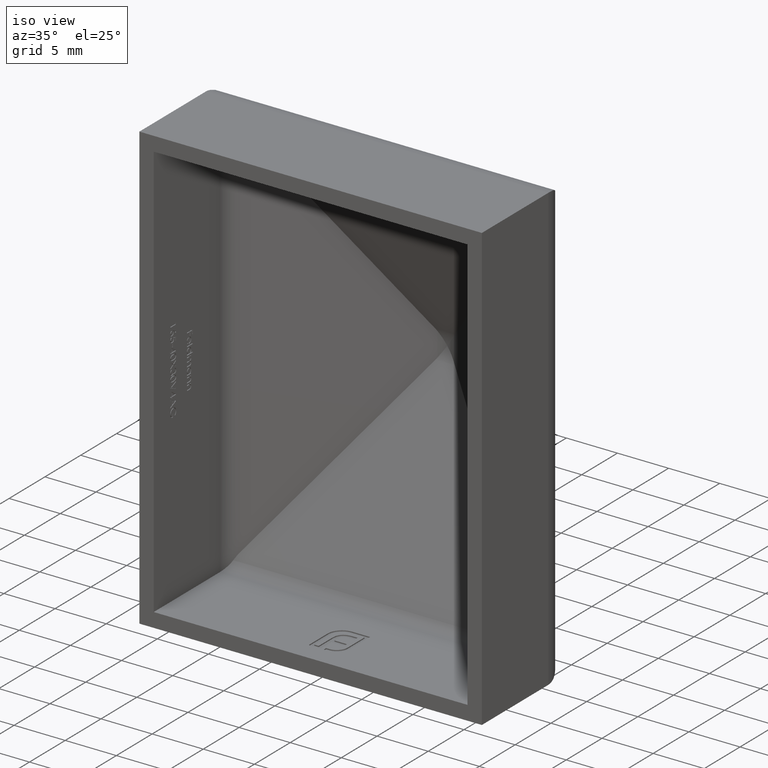
[diagram: clean part render]
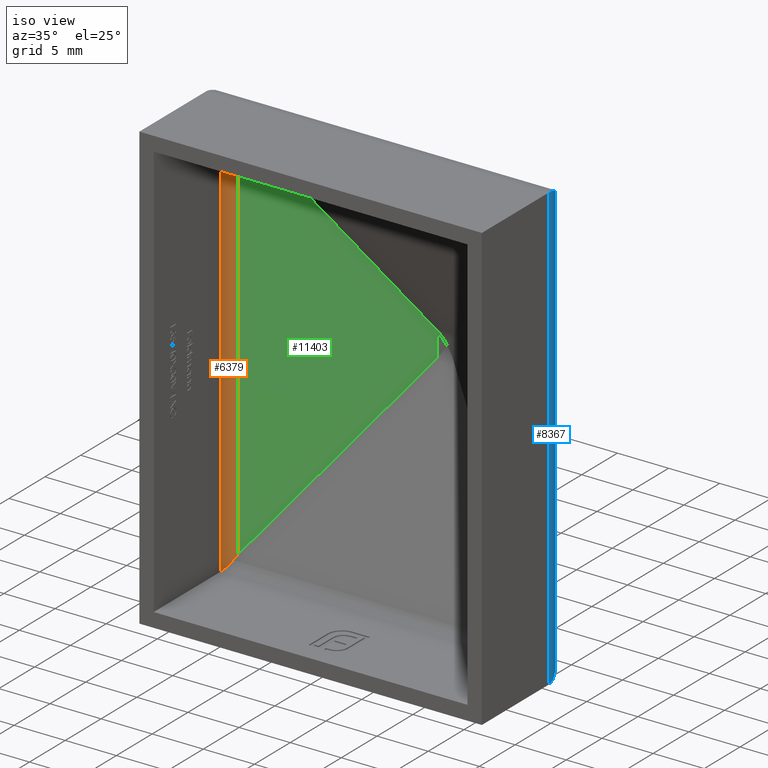
[diagram: same view with three faces highlighted in distinct colors, each labeled with its STEP entity id]
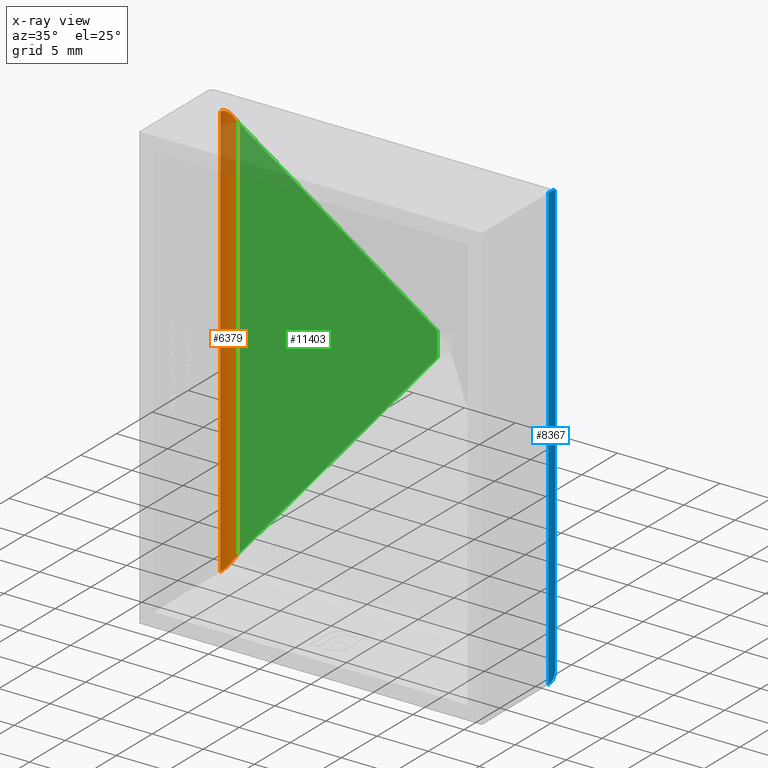
[diagram: x-ray of the same camera — body ghosted, the three highlighted faces saturated]
A machine part, iso view with three faces highlighted in distinct colors.
The next image is the same camera in x-ray (body ghosted, the three faces saturated) — at least one of them is partly hidden behind the body in this view.
Their STEP definitions:

[orange] entity #6379 — the highlighted cylindrical surface (edge-blend (fillet) strip) has radius 1.6 mm, axis along (-0, -0, -1).
#205 = CARTESIAN_POINT ( 'NONE',  ( -14.67972254407803234, 10.60493016804379529, -19.25135457659041549 ) ) ;
#274 = ORIENTED_EDGE ( 'NONE', *, *, #15290, .F. ) ;
#750 = DIRECTION ( 'NONE',  ( -0.000000000000000000, -0.000000000000000000, -1.000000000000000000 ) ) ;
#812 = CARTESIAN_POINT ( 'NONE',  ( -15.23804731063724027, 9.894635276344930119, -20.20459745980271649 ) ) ;
#916 = CARTESIAN_POINT ( 'NONE',  ( -14.56977444763071006, 10.67052725658989409, -19.10819482420551196 ) ) ;
#919 = EDGE_CURVE ( 'NONE', #10135, #2131, #4051, .T. ) ;
#1184 = B_SPLINE_CURVE_WITH_KNOTS ( 'NONE', 3,
 ( #11404, #7366, #7480, #11190, #8703, #812, #13896, #16766, #8585, #3392 ),
 .UNSPECIFIED., .F., .F.,
 ( 4, 2, 2, 2, 4 ),
 ( 0.007473035587638266440, 0.007852077891656525366, 0.008231120195674785159, 0.008610162499693043217, 0.008989204803711303010 ),
 .UNSPECIFIED. ) ;
#1861 = EDGE_CURVE ( 'NONE', #2131, #14797, #10075, .T. ) ;
#1955 =( BOUNDED_CURVE ( )  B_SPLINE_CURVE ( 3, ( #3559, #7749, #16983, #2314 ),
 .UNSPECIFIED., .F., .F. ) 
 B_SPLINE_CURVE_WITH_KNOTS ( ( 4, 4 ),
 ( 5.505774456628172331, 5.745255778400744084 ),
 .UNSPECIFIED. ) 
 CURVE ( )  GEOMETRIC_REPRESENTATION_ITEM ( )  RATIONAL_B_SPLINE_CURVE ( ( 1.000000000000000000, 0.9952264323498023479, 0.9952264323498023479, 1.000000000000000000 ) ) 
 REPRESENTATION_ITEM ( '' )  );
#2032 = CARTESIAN_POINT ( 'NONE',  ( -15.14237450061064649, 10.09232732462494653, 20.07247944126415362 ) ) ;
#2131 = VERTEX_POINT ( 'NONE', #11335 ) ;
#2314 = CARTESIAN_POINT ( 'NONE',  ( -14.56977444763071006, 10.67052725658989409, 19.10819482420551196 ) ) ;
#2986 = ORIENTED_EDGE ( 'NONE', *, *, #1861, .T. ) ;
#3384 = CARTESIAN_POINT ( 'NONE',  ( -15.23804731063724205, 9.894635276344919461, 20.20459745980272004 ) ) ;
#3392 = CARTESIAN_POINT ( 'NONE',  ( -15.34999999999998899, 9.296493103079932041, -20.35000000000000142 ) ) ;
#3559 = CARTESIAN_POINT ( 'NONE',  ( -14.87229824412480994, 10.43686438088134238, 19.61814305772313105 ) ) ;
#4051 = B_SPLINE_CURVE_WITH_KNOTS ( 'NONE', 3,
 ( #15825, #14776, #5678, #7016, #2032, #3384, #14176, #6259, #9177, #17199 ),
 .UNSPECIFIED., .F., .F.,
 ( 4, 2, 2, 2, 4 ),
 ( 0.007473035587638262103, 0.007852077891656525366, 0.008231120195674788628, 0.008610162499693051891, 0.008989204803711315153 ),
 .UNSPECIFIED. ) ;
#4082 = VECTOR ( 'NONE', #750, 1000.000000000000000 ) ;
#4463 = CARTESIAN_POINT ( 'NONE',  ( -14.87229824412481172, 10.43686438088134061, -19.61814305772313105 ) ) ;
#5370 = AXIS2_PLACEMENT_3D ( 'NONE', #5393, #10903, #13360 ) ;
#5393 = CARTESIAN_POINT ( 'NONE',  ( -13.74999999999998934, 9.296493103079965792, 21.75000000000000000 ) ) ;
#5678 = CARTESIAN_POINT ( 'NONE',  ( -14.97827143062366595, 10.32600729095936920, 19.82134462968860333 ) ) ;
#5964 = ORIENTED_EDGE ( 'NONE', *, *, #919, .T. ) ;
#6259 = CARTESIAN_POINT ( 'NONE',  ( -15.33466010626163900, 9.548929487481535361, 20.33059636364347966 ) ) ;
#6379 = ADVANCED_FACE ( 'NONE', ( #11582 ), #10762, .F. ) ;
#6757 = EDGE_LOOP ( 'NONE', ( #7537, #13170, #274, #5964, #2986, #14700 ) ) ;
#6880 =( BOUNDED_CURVE ( )  B_SPLINE_CURVE ( 3, ( #12024, #12203, #205, #9361 ),
 .UNSPECIFIED., .F., .F. ) 
 B_SPLINE_CURVE_WITH_KNOTS ( ( 4, 4 ),
 ( 2.364181803038378771, 2.603663124810950968 ),
 .UNSPECIFIED. ) 
 CURVE ( )  GEOMETRIC_REPRESENTATION_ITEM ( )  RATIONAL_B_SPLINE_CURVE ( ( 1.000000000000000000, 0.9952264323498023479, 0.9952264323498023479, 1.000000000000000000 ) ) 
 REPRESENTATION_ITEM ( '' )  );
#7016 = CARTESIAN_POINT ( 'NONE',  ( -15.08869327799758153, 10.17765737708077012, 19.99568853197853002 ) ) ;
#7366 = CARTESIAN_POINT ( 'NONE',  ( -14.92166758219849498, 10.38827746667869079, -19.72417963282981290 ) ) ;
#7480 = CARTESIAN_POINT ( 'NONE',  ( -14.97827143062366240, 10.32600729095936920, -19.82134462968859623 ) ) ;
#7537 = ORIENTED_EDGE ( 'NONE', *, *, #13147, .T. ) ;
#7623 = CARTESIAN_POINT ( 'NONE',  ( -14.56977444763071006, 10.67052725658989409, 21.75000000000000000 ) ) ;
#7706 = EDGE_CURVE ( 'NONE', #14097, #11564, #16370, .T. ) ;
#7749 = CARTESIAN_POINT ( 'NONE',  ( -14.78104749106515925, 10.52666895762529364, 19.42215263719309704 ) ) ;
#7793 = VECTOR ( 'NONE', #10311, 1000.000000000000000 ) ;
#8585 = CARTESIAN_POINT ( 'NONE',  ( -15.34999999999999432, 9.423924627749887151, -20.35000000000000497 ) ) ;
#8703 = CARTESIAN_POINT ( 'NONE',  ( -15.14237450061064649, 10.09232732462495186, -20.07247944126414652 ) ) ;
#9177 = CARTESIAN_POINT ( 'NONE',  ( -15.34999999999999964, 9.423924627749871163, 20.35000000000000497 ) ) ;
#9361 = CARTESIAN_POINT ( 'NONE',  ( -14.56977444763071006, 10.67052725658989409, -19.10819482420551196 ) ) ;
#10075 = LINE ( 'NONE', #15647, #7793 ) ;
#10135 = VERTEX_POINT ( 'NONE', #10431 ) ;
#10311 = DIRECTION ( 'NONE',  ( 0.000000000000000000, 0.000000000000000000, -1.000000000000000000 ) ) ;
#10367 = VERTEX_POINT ( 'NONE', #4463 ) ;
#10431 = CARTESIAN_POINT ( 'NONE',  ( -14.87229824412480994, 10.43686438088134238, 19.61814305772313105 ) ) ;
#10762 = CYLINDRICAL_SURFACE ( 'NONE', #5370, 1.599999999999998979 ) ;
#10903 = DIRECTION ( 'NONE',  ( -0.000000000000000000, -0.000000000000000000, -1.000000000000000000 ) ) ;
#11190 = CARTESIAN_POINT ( 'NONE',  ( -15.08869327799757620, 10.17765737708077722, -19.99568853197853002 ) ) ;
#11335 = CARTESIAN_POINT ( 'NONE',  ( -15.34999999999999076, 9.296493103079916054, 20.35000000000000142 ) ) ;
#11404 = CARTESIAN_POINT ( 'NONE',  ( -14.87229824412481172, 10.43686438088134061, -19.61814305772313105 ) ) ;
#11564 = VERTEX_POINT ( 'NONE', #916 ) ;
#11582 = FACE_OUTER_BOUND ( 'NONE', #6757, .T. ) ;
#12024 = CARTESIAN_POINT ( 'NONE',  ( -14.87229824412481172, 10.43686438088134061, -19.61814305772313105 ) ) ;
#12203 = CARTESIAN_POINT ( 'NONE',  ( -14.78104749106515925, 10.52666895762529542, -19.42215263719309704 ) ) ;
#13056 = CARTESIAN_POINT ( 'NONE',  ( -14.56977444763071006, 10.67052725658989409, 19.10819482420551196 ) ) ;
#13147 = EDGE_CURVE ( 'NONE', #10367, #11564, #6880, .T. ) ;
#13170 = ORIENTED_EDGE ( 'NONE', *, *, #7706, .F. ) ;
#13360 = DIRECTION ( 'NONE',  ( -1.000000000000000000, 0.000000000000000000, 0.000000000000000000 ) ) ;
#13896 = CARTESIAN_POINT ( 'NONE',  ( -15.27809645997709609, 9.786179726904181919, -20.25712701318252584 ) ) ;
#14097 = VERTEX_POINT ( 'NONE', #13056 ) ;
#14176 = CARTESIAN_POINT ( 'NONE',  ( -15.27809645997709609, 9.786179726904174814, 20.25712701318253295 ) ) ;
#14700 = ORIENTED_EDGE ( 'NONE', *, *, #15212, .F. ) ;
#14743 = CARTESIAN_POINT ( 'NONE',  ( -15.34999999999998899, 9.296493103079932041, -20.35000000000000142 ) ) ;
#14776 = CARTESIAN_POINT ( 'NONE',  ( -14.92166758219849498, 10.38827746667869434, 19.72417963282981290 ) ) ;
#14797 = VERTEX_POINT ( 'NONE', #14743 ) ;
#15212 = EDGE_CURVE ( 'NONE', #10367, #14797, #1184, .T. ) ;
#15290 = EDGE_CURVE ( 'NONE', #10135, #14097, #1955, .T. ) ;
#15647 = CARTESIAN_POINT ( 'NONE',  ( -15.34999999999999076, 9.296493103079967568, 21.75000000000000000 ) ) ;
#15825 = CARTESIAN_POINT ( 'NONE',  ( -14.87229824412480994, 10.43686438088134238, 19.61814305772313105 ) ) ;
#16370 = LINE ( 'NONE', #7623, #4082 ) ;
#16766 = CARTESIAN_POINT ( 'NONE',  ( -15.33466010626163367, 9.548929487481551348, -20.33059636364348322 ) ) ;
#16983 = CARTESIAN_POINT ( 'NONE',  ( -14.67972254407803234, 10.60493016804379529, 19.25135457659041549 ) ) ;
#17199 = CARTESIAN_POINT ( 'NONE',  ( -15.34999999999999076, 9.296493103079916054, 20.35000000000000142 ) ) ;

[blue] entity #8367 — the highlighted cylindrical surface (partial cylindrical patch) has radius 3 mm, axis along (-0, -0, -1).
#160 = B_SPLINE_CURVE_WITH_KNOTS ( 'NONE', 3,
 ( #5728, #8376, #8323, #10945, #8269, #15006, #4270, #401, #5555, #9742, #14949, #4341, #11052, #16182 ),
 .UNSPECIFIED., .F., .F.,
 ( 4, 2, 2, 2, 2, 2, 4 ),
 ( 0.000000000000000000, 0.0004112258583125507879, 0.0008224517166251015757, 0.001233677574937652472, 0.001644903433250203151, 0.002467355149875301908, 0.003289806866500400665 ),
 .UNSPECIFIED. ) ;
#401 = CARTESIAN_POINT ( 'NONE',  ( 16.46377361363001413, 10.58147893519188187, 21.42180310184390279 ) ) ;
#1064 = CARTESIAN_POINT ( 'NONE',  ( 15.53236989041276317, 11.70961505891849619, -20.20132888707435015 ) ) ;
#1176 = CARTESIAN_POINT ( 'NONE',  ( 16.60442991971268967, 10.22910847771391296, -21.58437289162511163 ) ) ;
#1555 = VERTEX_POINT ( 'NONE', #3936 ) ;
#1716 = CARTESIAN_POINT ( 'NONE',  ( 15.37148168312974050, 11.82244978327095808, -19.95507723846092318 ) ) ;
#2245 = EDGE_LOOP ( 'NONE', ( #11536, #14294, #3419, #3454, #10688, #6822 ) ) ;
#2293 = CARTESIAN_POINT ( 'NONE',  ( 16.09692896685115215, 11.17674144436293204, -20.98432485077248799 ) ) ;
#2487 = B_SPLINE_CURVE_WITH_KNOTS ( 'NONE', 3,
 ( #10453, #5225, #10287, #14282, #14391, #1176, #9120, #11829, #15741, #3764, #2293, #14334, #3708, #1064 ),
 .UNSPECIFIED., .F., .F.,
 ( 4, 2, 2, 2, 2, 2, 4 ),
 ( 0.000000000000000000, 0.0004112258583125507879, 0.0008224517166251015757, 0.001233677574937652472, 0.001644903433250203151, 0.002467355149875301908, 0.003289806866500400665 ),
 .UNSPECIFIED. ) ;
#2850 = DIRECTION ( 'NONE',  ( -0.000000000000000000, -0.000000000000000000, -1.000000000000000000 ) ) ;
#2997 = EDGE_CURVE ( 'NONE', #5568, #13969, #4563, .T. ) ;
#3419 = ORIENTED_EDGE ( 'NONE', *, *, #14323, .T. ) ;
#3454 = ORIENTED_EDGE ( 'NONE', *, *, #8360, .F. ) ;
#3467 =( BOUNDED_CURVE ( )  B_SPLINE_CURVE ( 3, ( #6031, #10007, #7347, #16638 ),
 .UNSPECIFIED., .F., .F. ) 
 B_SPLINE_CURVE_WITH_KNOTS ( ( 4, 4 ),
 ( 0.5379295287788433688, 0.6361752895425998311 ),
 .UNSPECIFIED. ) 
 CURVE ( )  GEOMETRIC_REPRESENTATION_ITEM ( )  RATIONAL_B_SPLINE_CURVE ( ( 1.000000000000000000, 0.9991958092737058816, 0.9991958092737058816, 1.000000000000000000 ) ) 
 REPRESENTATION_ITEM ( '' )  );
#3708 = CARTESIAN_POINT ( 'NONE',  ( 15.66867918130274084, 11.60893486939139763, -20.42105435541788339 ) ) ;
#3764 = CARTESIAN_POINT ( 'NONE',  ( 16.23055599966765072, 11.00033405241351403, -21.14613417132414952 ) ) ;
#3936 = CARTESIAN_POINT ( 'NONE',  ( 15.53236989041276317, 11.70961505891849619, 20.20132888707435015 ) ) ;
#4270 = CARTESIAN_POINT ( 'NONE',  ( 16.56163005934021015, 10.35029205173072064, 21.53525582871081667 ) ) ;
#4314 = VECTOR ( 'NONE', #13838, 1000.000000000000000 ) ;
#4341 = CARTESIAN_POINT ( 'NONE',  ( 15.81448601036917267, 11.48311307768285694, 20.61918057407262594 ) ) ;
#4448 = DIRECTION ( 'NONE',  ( -0.000000000000000000, -0.000000000000000000, -1.000000000000000000 ) ) ;
#4563 =( BOUNDED_CURVE ( )  B_SPLINE_CURVE ( 3, ( #14937, #1716, #6985, #9591 ),
 .UNSPECIFIED., .F., .F. ) 
 B_SPLINE_CURVE_WITH_KNOTS ( ( 4, 4 ),
 ( 3.679522182368637484, 3.777767943132392947 ),
 .UNSPECIFIED. ) 
 CURVE ( )  GEOMETRIC_REPRESENTATION_ITEM ( )  RATIONAL_B_SPLINE_CURVE ( ( 1.000000000000000000, 0.9991958092737058816, 0.9991958092737058816, 1.000000000000000000 ) ) 
 REPRESENTATION_ITEM ( '' )  );
#4897 = CARTESIAN_POINT ( 'NONE',  ( 15.28707708930760845, 11.87280714091108358, -19.84517682961195106 ) ) ;
#5225 = CARTESIAN_POINT ( 'NONE',  ( 16.75000000000000355, 9.435916837626141529, -21.75000000000000355 ) ) ;
#5555 = CARTESIAN_POINT ( 'NONE',  ( 16.40821662155761373, 10.69218017578038804, 21.35687643289709570 ) ) ;
#5568 = VERTEX_POINT ( 'NONE', #4897 ) ;
#5728 = CARTESIAN_POINT ( 'NONE',  ( 16.74999999999999289, 9.296493103079967568, 21.75000000000000000 ) ) ;
#5806 = DIRECTION ( 'NONE',  ( -1.000000000000000000, 0.000000000000000000, 0.000000000000000000 ) ) ;
#6031 = CARTESIAN_POINT ( 'NONE',  ( 15.28707708930760667, 11.87280714091108358, 19.84517682961194751 ) ) ;
#6140 = VERTEX_POINT ( 'NONE', #14535 ) ;
#6168 = VECTOR ( 'NONE', #2850, 1000.000000000000000 ) ;
#6185 = LINE ( 'NONE', #9863, #4314 ) ;
#6481 = CARTESIAN_POINT ( 'NONE',  ( 16.75000000000000000, 9.296493103079967568, 21.75000000000000000 ) ) ;
#6822 = ORIENTED_EDGE ( 'NONE', *, *, #9734, .T. ) ;
#6907 = AXIS2_PLACEMENT_3D ( 'NONE', #8207, #4448, #5806 ) ;
#6985 = CARTESIAN_POINT ( 'NONE',  ( 15.45331175715145378, 11.76800864154545678, -20.07389013918130871 ) ) ;
#7347 = CARTESIAN_POINT ( 'NONE',  ( 15.45331175715145200, 11.76800864154545678, 20.07389013918131226 ) ) ;
#7971 = EDGE_CURVE ( 'NONE', #6140, #5568, #6185, .T. ) ;
#8207 = CARTESIAN_POINT ( 'NONE',  ( 13.75000000000000888, 9.296493103079965792, 21.75000000000000000 ) ) ;
#8269 = CARTESIAN_POINT ( 'NONE',  ( 16.67551108115544167, 9.973934257418351379, 21.66558790018897440 ) ) ;
#8288 = EDGE_CURVE ( 'NONE', #9172, #12129, #17150, .T. ) ;
#8323 = CARTESIAN_POINT ( 'NONE',  ( 16.74033533030245735, 9.572631146092316357, 21.73909050069356752 ) ) ;
#8360 = EDGE_CURVE ( 'NONE', #9172, #1555, #160, .T. ) ;
#8367 = ADVANCED_FACE ( 'NONE', ( #11740 ), #9700, .T. ) ;
#8376 = CARTESIAN_POINT ( 'NONE',  ( 16.75000000000000355, 9.435916837626141529, 21.75000000000000355 ) ) ;
#8644 = CARTESIAN_POINT ( 'NONE',  ( 15.53236989041276317, 11.70961505891849619, -20.20132888707435015 ) ) ;
#9120 = CARTESIAN_POINT ( 'NONE',  ( 16.56163005934021015, 10.35029205173072064, -21.53525582871081667 ) ) ;
#9172 = VERTEX_POINT ( 'NONE', #10201 ) ;
#9591 = CARTESIAN_POINT ( 'NONE',  ( 15.53236989041276317, 11.70961505891849619, -20.20132888707435015 ) ) ;
#9700 = CYLINDRICAL_SURFACE ( 'NONE', #6907, 2.999999999999990674 ) ;
#9734 = EDGE_CURVE ( 'NONE', #12129, #13969, #2487, .T. ) ;
#9742 = CARTESIAN_POINT ( 'NONE',  ( 16.23055599966765072, 11.00033405241351403, 21.14613417132414952 ) ) ;
#9863 = CARTESIAN_POINT ( 'NONE',  ( 15.28707708930760667, 11.87280714091108358, 21.75000000000000000 ) ) ;
#10007 = CARTESIAN_POINT ( 'NONE',  ( 15.37148168312973873, 11.82244978327095808, 19.95507723846092674 ) ) ;
#10201 = CARTESIAN_POINT ( 'NONE',  ( 16.74999999999999289, 9.296493103079967568, 21.75000000000000000 ) ) ;
#10287 = CARTESIAN_POINT ( 'NONE',  ( 16.74033533030245735, 9.572631146092316357, -21.73909050069356752 ) ) ;
#10453 = CARTESIAN_POINT ( 'NONE',  ( 16.75000000000000000, 9.296493103079967568, -21.75000000000000000 ) ) ;
#10688 = ORIENTED_EDGE ( 'NONE', *, *, #8288, .T. ) ;
#10945 = CARTESIAN_POINT ( 'NONE',  ( 16.70326928354632301, 9.841064627597743808, 21.69708704955368717 ) ) ;
#11052 = CARTESIAN_POINT ( 'NONE',  ( 15.66867918130274084, 11.60893486939139763, 20.42105435541788339 ) ) ;
#11536 = ORIENTED_EDGE ( 'NONE', *, *, #2997, .F. ) ;
#11740 = FACE_OUTER_BOUND ( 'NONE', #2245, .T. ) ;
#11829 = CARTESIAN_POINT ( 'NONE',  ( 16.46377361363001413, 10.58147893519188187, -21.42180310184390279 ) ) ;
#12129 = VERTEX_POINT ( 'NONE', #14101 ) ;
#13838 = DIRECTION ( 'NONE',  ( -0.000000000000000000, -0.000000000000000000, -1.000000000000000000 ) ) ;
#13969 = VERTEX_POINT ( 'NONE', #8644 ) ;
#14101 = CARTESIAN_POINT ( 'NONE',  ( 16.75000000000000000, 9.296493103079967568, -21.75000000000000000 ) ) ;
#14282 = CARTESIAN_POINT ( 'NONE',  ( 16.70326928354632301, 9.841064627597743808, -21.69708704955368717 ) ) ;
#14294 = ORIENTED_EDGE ( 'NONE', *, *, #7971, .F. ) ;
#14323 = EDGE_CURVE ( 'NONE', #6140, #1555, #3467, .T. ) ;
#14334 = CARTESIAN_POINT ( 'NONE',  ( 15.81448601036917267, 11.48311307768285694, -20.61918057407262594 ) ) ;
#14391 = CARTESIAN_POINT ( 'NONE',  ( 16.67551108115544167, 9.973934257418351379, -21.66558790018897440 ) ) ;
#14535 = CARTESIAN_POINT ( 'NONE',  ( 15.28707708930760667, 11.87280714091108358, 19.84517682961194751 ) ) ;
#14937 = CARTESIAN_POINT ( 'NONE',  ( 15.28707708930760845, 11.87280714091108358, -19.84517682961195106 ) ) ;
#14949 = CARTESIAN_POINT ( 'NONE',  ( 16.09692896685115215, 11.17674144436293204, 20.98432485077248799 ) ) ;
#15006 = CARTESIAN_POINT ( 'NONE',  ( 16.60442991971268967, 10.22910847771391296, 21.58437289162511163 ) ) ;
#15741 = CARTESIAN_POINT ( 'NONE',  ( 16.40821662155761373, 10.69218017578038804, -21.35687643289709570 ) ) ;
#16182 = CARTESIAN_POINT ( 'NONE',  ( 15.53236989041276317, 11.70961505891849619, 20.20132888707435015 ) ) ;
#16638 = CARTESIAN_POINT ( 'NONE',  ( 15.53236989041276317, 11.70961505891849619, 20.20132888707435015 ) ) ;
#17150 = LINE ( 'NONE', #6481, #6168 ) ;

[green] entity #11403 — the highlighted planar face has unit normal (0.5124, -0.8588, 0).
#374 = VECTOR ( 'NONE', #2538, 1000.000000000000000 ) ;
#750 = DIRECTION ( 'NONE',  ( -0.000000000000000000, -0.000000000000000000, -1.000000000000000000 ) ) ;
#916 = CARTESIAN_POINT ( 'NONE',  ( -14.56977444763071006, 10.67052725658989409, -19.10819482420551196 ) ) ;
#1767 = EDGE_CURVE ( 'NONE', #11564, #5292, #6148, .T. ) ;
#2428 = CARTESIAN_POINT ( 'NONE',  ( -0.8565845778715214243, 18.85207254206942196, 1.248727409996672977 ) ) ;
#2538 = DIRECTION ( 'NONE',  ( 0.000000000000000000, -0.000000000000000000, -1.000000000000000000 ) ) ;
#2796 = CARTESIAN_POINT ( 'NONE',  ( -0.9378914219649105988, 18.80356335979401194, -1.358574216364362153 ) ) ;
#3030 =( BOUNDED_CURVE ( )  B_SPLINE_CURVE ( 3, ( #10363, #2428, #4970, #16919 ),
 .UNSPECIFIED., .F., .F. ) 
 B_SPLINE_CURVE_WITH_KNOTS ( ( 4, 4 ),
 ( 0.3744330320460750317, 0.4296595343722421356 ),
 .UNSPECIFIED. ) 
 CURVE ( )  GEOMETRIC_REPRESENTATION_ITEM ( )  RATIONAL_B_SPLINE_CURVE ( ( 1.000000000000000000, 0.9997458522694770977, 0.9997458522694770977, 1.000000000000000000 ) ) 
 REPRESENTATION_ITEM ( '' )  );
#3275 = VERTEX_POINT ( 'NONE', #4931 ) ;
#3336 = DIRECTION ( 'NONE',  ( 0.8587713459437057439, 0.5123590297692000028, 0.000000000000000000 ) ) ;
#3464 = ORIENTED_EDGE ( 'NONE', *, *, #15733, .F. ) ;
#4082 = VECTOR ( 'NONE', #750, 1000.000000000000000 ) ;
#4161 = VECTOR ( 'NONE', #17003, 1000.000000000000114 ) ;
#4450 = VERTEX_POINT ( 'NONE', #7684 ) ;
#4594 = CARTESIAN_POINT ( 'NONE',  ( -0.9378914219649105988, 18.80356335979401194, -1.358574216364362153 ) ) ;
#4931 = CARTESIAN_POINT ( 'NONE',  ( -0.8197744476306884076, 18.87403415350994607, 1.192841452111362166 ) ) ;
#4970 = CARTESIAN_POINT ( 'NONE',  ( -0.8959669115803321482, 18.82857630598235943, 1.303985708518834663 ) ) ;
#5144 = CARTESIAN_POINT ( 'NONE',  ( -0.8197744476307090578, 18.87403415350993896, 21.75000000000000000 ) ) ;
#5208 = ORIENTED_EDGE ( 'NONE', *, *, #8990, .F. ) ;
#5269 =( BOUNDED_CURVE ( )  B_SPLINE_CURVE ( 3, ( #5935, #7263, #8538, #4594 ),
 .UNSPECIFIED., .F., .F. ) 
 B_SPLINE_CURVE_WITH_KNOTS ( ( 4, 4 ),
 ( 0.3744330320460808048, 0.4296595343722418026 ),
 .UNSPECIFIED. ) 
 CURVE ( )  GEOMETRIC_REPRESENTATION_ITEM ( )  RATIONAL_B_SPLINE_CURVE ( ( 1.000000000000000000, 0.9997458522694772087, 0.9997458522694772087, 1.000000000000000000 ) ) 
 REPRESENTATION_ITEM ( '' )  );
#5292 = VERTEX_POINT ( 'NONE', #2796 ) ;
#5469 = FACE_OUTER_BOUND ( 'NONE', #11180, .T. ) ;
#5913 = CARTESIAN_POINT ( 'NONE',  ( -15.69708772193414958, 9.997951095081688777, 20.57603187117812027 ) ) ;
#5935 = CARTESIAN_POINT ( 'NONE',  ( -0.8197744476307090578, 18.87403415350993896, -1.192841452111377487 ) ) ;
#6148 = LINE ( 'NONE', #10083, #8412 ) ;
#7263 = CARTESIAN_POINT ( 'NONE',  ( -0.8565845778715301950, 18.85207254206941840, -1.248727409996684301 ) ) ;
#7288 = LINE ( 'NONE', #5913, #4161 ) ;
#7623 = CARTESIAN_POINT ( 'NONE',  ( -14.56977444763071006, 10.67052725658989409, 21.75000000000000000 ) ) ;
#7684 = CARTESIAN_POINT ( 'NONE',  ( -0.8197744476307090578, 18.87403415350993896, -1.192841452111377487 ) ) ;
#7706 = EDGE_CURVE ( 'NONE', #14097, #11564, #16370, .T. ) ;
#8041 = VERTEX_POINT ( 'NONE', #13775 ) ;
#8412 = VECTOR ( 'NONE', #11356, 1000.000000000000114 ) ;
#8529 = DIRECTION ( 'NONE',  ( 0.5123590297692001139, -0.8587713459437058550, 0.000000000000000000 ) ) ;
#8538 = CARTESIAN_POINT ( 'NONE',  ( -0.8959669115803351458, 18.82857630598236653, -1.303985708518839992 ) ) ;
#8990 = EDGE_CURVE ( 'NONE', #4450, #5292, #5269, .T. ) ;
#9098 = ORIENTED_EDGE ( 'NONE', *, *, #14143, .T. ) ;
#9695 = PLANE ( 'NONE',  #14806 ) ;
#10083 = CARTESIAN_POINT ( 'NONE',  ( 2.865268004184939432, 21.07259932943086866, 3.593392932869414302 ) ) ;
#10363 = CARTESIAN_POINT ( 'NONE',  ( -0.8197744476306884076, 18.87403415350994607, 1.192841452111362166 ) ) ;
#11180 = EDGE_LOOP ( 'NONE', ( #15704, #5208, #12191, #9098, #3464, #14217 ) ) ;
#11356 = DIRECTION ( 'NONE',  ( 0.5724733910802630721, 0.3415483208749195421, 0.7453985249600290075 ) ) ;
#11403 = ADVANCED_FACE ( 'NONE', ( #5469 ), #9695, .T. ) ;
#11564 = VERTEX_POINT ( 'NONE', #916 ) ;
#12191 = ORIENTED_EDGE ( 'NONE', *, *, #15484, .F. ) ;
#12650 = LINE ( 'NONE', #5144, #374 ) ;
#13056 = CARTESIAN_POINT ( 'NONE',  ( -14.56977444763071006, 10.67052725658989409, 19.10819482420551196 ) ) ;
#13775 = CARTESIAN_POINT ( 'NONE',  ( -0.9378914219649105988, 18.80356335979401194, 1.358574216364365261 ) ) ;
#14097 = VERTEX_POINT ( 'NONE', #13056 ) ;
#14143 = EDGE_CURVE ( 'NONE', #3275, #8041, #3030, .T. ) ;
#14217 = ORIENTED_EDGE ( 'NONE', *, *, #7706, .T. ) ;
#14806 = AXIS2_PLACEMENT_3D ( 'NONE', #15145, #8529, #3336 ) ;
#15145 = CARTESIAN_POINT ( 'NONE',  ( -14.56977444763070828, 10.67052725658989232, 21.75000000000000000 ) ) ;
#15484 = EDGE_CURVE ( 'NONE', #3275, #4450, #12650, .T. ) ;
#15704 = ORIENTED_EDGE ( 'NONE', *, *, #1767, .T. ) ;
#15733 = EDGE_CURVE ( 'NONE', #14097, #8041, #7288, .T. ) ;
#16370 = LINE ( 'NONE', #7623, #4082 ) ;
#16919 = CARTESIAN_POINT ( 'NONE',  ( -0.9378914219649105988, 18.80356335979401194, 1.358574216364365261 ) ) ;
#17003 = DIRECTION ( 'NONE',  ( 0.5724733910802630721, 0.3415483208749195421, -0.7453985249600290075 ) ) ;